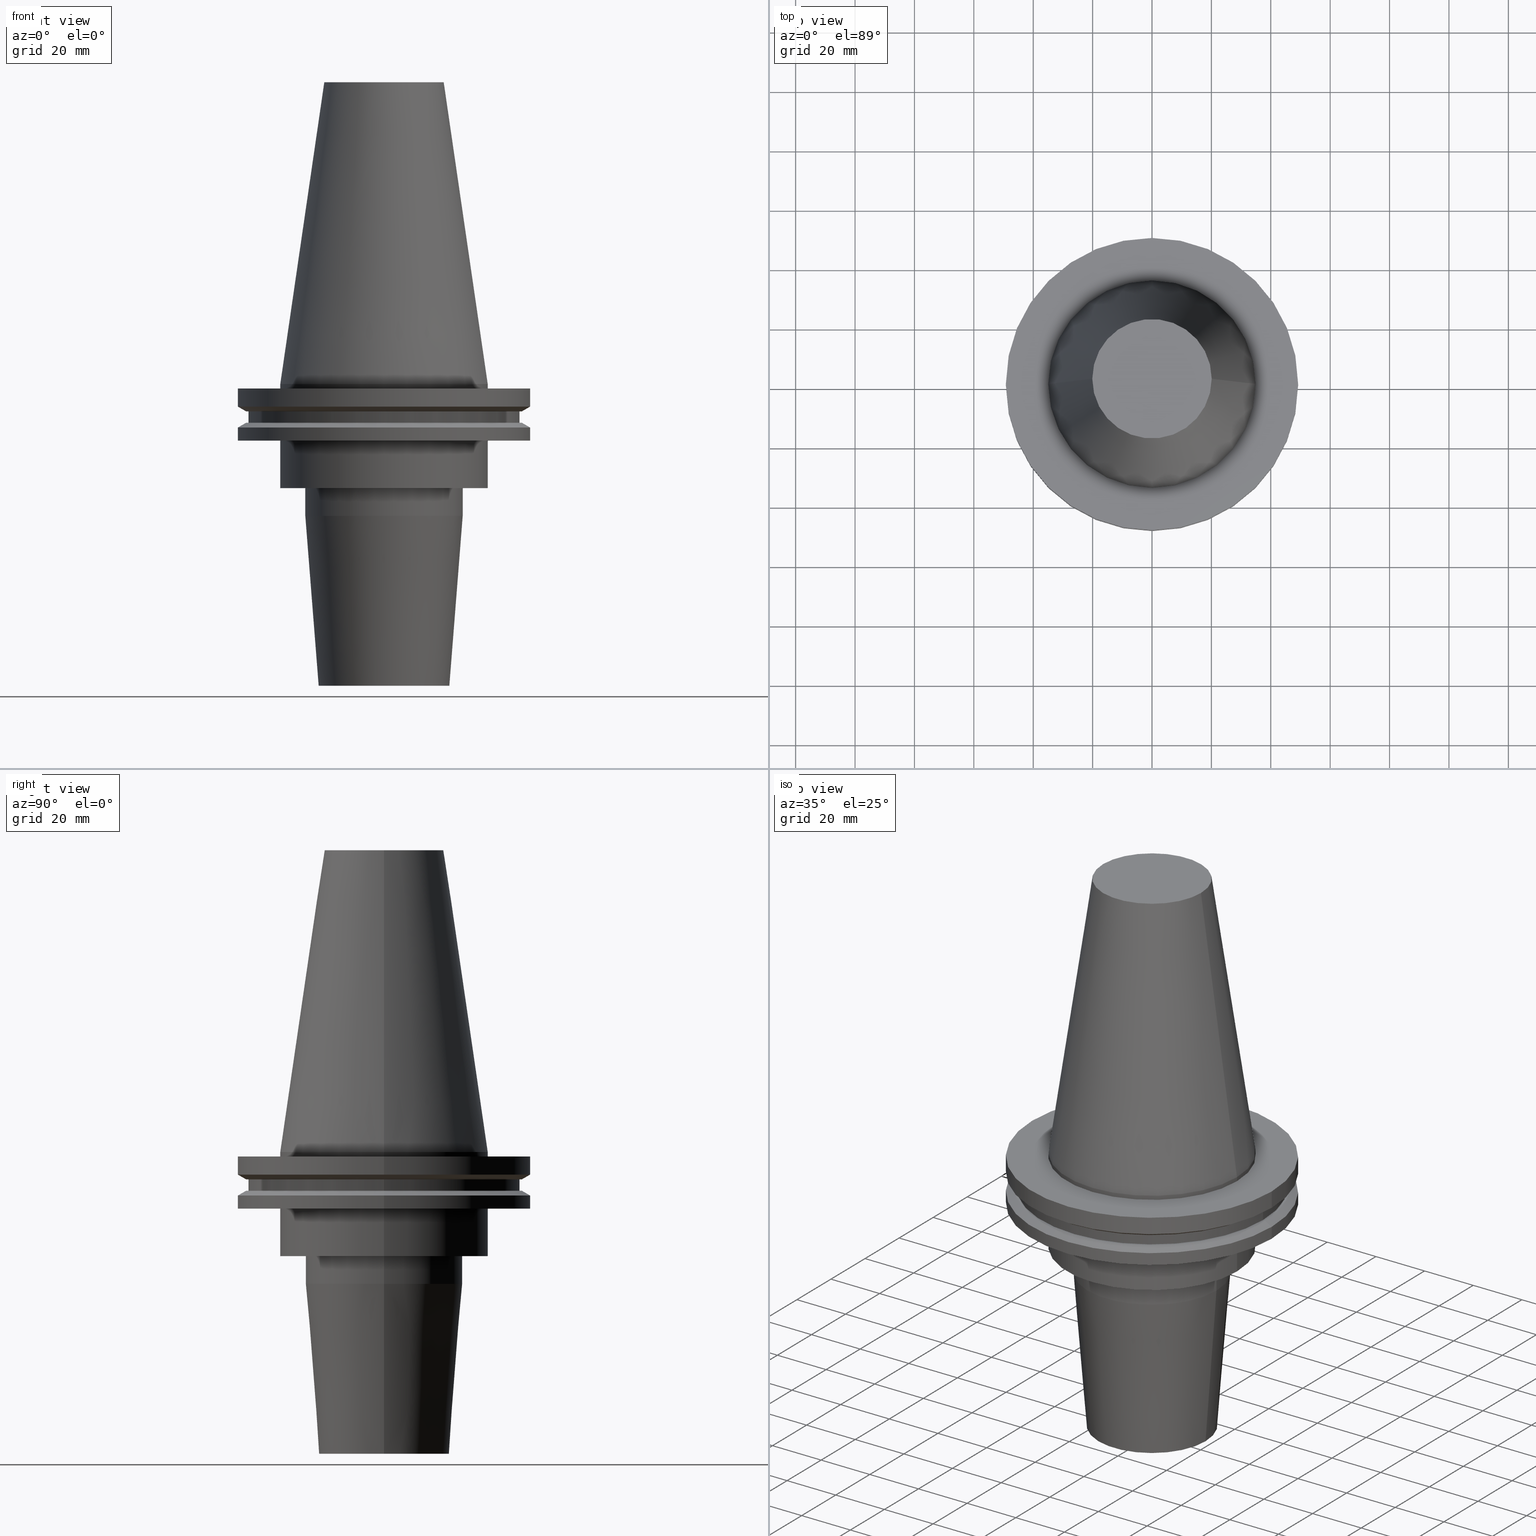
[diagram: canonical four-view strip — front | top / right | iso, engineering-drawing reading convention]
A machine part, canonical four-view strip (front | top / right | iso — engineering-drawing reading convention). The complete STEP part file that produces these views, byte-faithful:
ISO-10303-21;
HEADER;
FILE_DESCRIPTION (( 'STEP AP203' ),
    '1' );
FILE_NAME ('BCV50-SF1_250-4.stp',
    '2022-03-03T17:22:52',
    ( '' ),
    ( '' ),
    'SwSTEP 2.0',
    'SolidWorks 2021',
    '' );
FILE_SCHEMA (( 'CONFIG_CONTROL_DESIGN' ));
ENDSEC;

DATA;
#1 = DIRECTION ( 'NONE',  ( 1.000000000000000000, 0.000000000000000000, 0.000000000000000000 ) ) ;
#2 = CIRCLE ( 'NONE', #326, 34.92499999999999005 ) ;
#3 = AXIS2_PLACEMENT_3D ( 'NONE', #226, #434, #762 ) ;
#4 = DIRECTION ( 'NONE',  ( 1.000000000000000000, 0.000000000000000000, 0.000000000000000000 ) ) ;
#5 = CONICAL_SURFACE ( 'NONE', #608, 49.21499999999998920, 1.047197551196554333 ) ;
#6 = EDGE_CURVE ( 'NONE', #400, #793, #80, .T. ) ;
#7 = PLANE ( 'NONE',  #567 ) ;
#8 = LINE ( 'NONE', #275, #787 ) ;
#9 = DIRECTION ( 'NONE',  ( 0.000000000000000000, 0.000000000000000000, -1.000000000000000000 ) ) ;
#10 = CARTESIAN_POINT ( 'NONE',  ( 0.000000000000000000, 0.000000000000000000, -35.04999999999999716 ) ) ;
#11 = DIRECTION ( 'NONE',  ( 1.000000000000000000, 0.000000000000000000, 0.000000000000000000 ) ) ;
#12 = EDGE_CURVE ( 'NONE', #393, #560, #457, .T. ) ;
#13 = CARTESIAN_POINT ( 'NONE',  ( 0.000000000000000000, 0.000000000000000000, -19.04999999999999716 ) ) ;
#14 = AXIS2_PLACEMENT_3D ( 'NONE', #714, #696, #555 ) ;
#15 = EDGE_CURVE ( 'NONE', #599, #219, #85, .T. ) ;
#16 = ORIENTED_EDGE ( 'NONE', *, *, #137, .T. ) ;
#17 = CONICAL_SURFACE ( 'NONE', #470, 22.00000000000000000, 0.07853981633973751431 ) ;
#18 = CARTESIAN_POINT ( 'NONE',  ( 0.000000000000000000, 0.000000000000000000, -9.204999999999991189 ) ) ;
#19 = CARTESIAN_POINT ( 'NONE',  ( 49.21499999999998920, 0.000000000000000000, -14.65761014474876944 ) ) ;
#20 = EDGE_CURVE ( 'NONE', #772, #54, #553, .T. ) ;
#21 = DIRECTION ( 'NONE',  ( 1.000000000000000000, 0.000000000000000000, 0.000000000000000000 ) ) ;
#22 = ORIENTED_EDGE ( 'NONE', *, *, #453, .T. ) ;
#23 = DIRECTION ( 'NONE',  ( 1.000000000000000000, 0.000000000000000000, 0.000000000000000000 ) ) ;
#24 = CARTESIAN_POINT ( 'NONE',  ( 49.21499999999999631, 0.000000000000000000, -1.499999999999987566 ) ) ;
#25 = CC_DESIGN_PERSON_AND_ORGANIZATION_ASSIGNMENT ( #593, #246, ( #528 ) ) ;
#26 = ORIENTED_EDGE ( 'NONE', *, *, #15, .F. ) ;
#27 = DIRECTION ( 'NONE',  ( -0.000000000000000000, -0.000000000000000000, 1.000000000000000000 ) ) ;
#28 = DIRECTION ( 'NONE',  ( -0.000000000000000000, -0.000000000000000000, 1.000000000000000000 ) ) ;
#29 = AXIS2_PLACEMENT_3D ( 'NONE', #13, #807, #692 ) ;
#30 = COORDINATED_UNIVERSAL_TIME_OFFSET ( 6, 0, .BEHIND. ) ;
#31 = AXIS2_PLACEMENT_3D ( 'NONE', #416, #603, #284 ) ;
#32 = DIRECTION ( 'NONE',  ( 1.000000000000000000, 0.000000000000000000, 0.000000000000000000 ) ) ;
#33 = ORIENTED_EDGE ( 'NONE', *, *, #43, .T. ) ;
#34 = LINE ( 'NONE', #643, #540 ) ;
#35 = DIRECTION ( 'NONE',  ( -1.000000000000000000, 0.000000000000000000, -0.000000000000000000 ) ) ;
#36 = EDGE_LOOP ( 'NONE', ( #721, #320, #331, #464 ) ) ;
#37 = CARTESIAN_POINT ( 'NONE',  ( 0.000000000000000000, 0.000000000000000000, 0.000000000000000000 ) ) ;
#38 = DIRECTION ( 'NONE',  ( 1.000000000000000000, 0.000000000000000000, 0.000000000000000000 ) ) ;
#39 = CARTESIAN_POINT ( 'NONE',  ( 49.21499999999999631, 0.000000000000000000, 101.5999999999999943 ) ) ;
#40 = ORIENTED_EDGE ( 'NONE', *, *, #704, .F. ) ;
#41 = DIRECTION ( 'NONE',  ( -0.000000000000000000, -0.000000000000000000, 1.000000000000000000 ) ) ;
#42 = CARTESIAN_POINT ( 'NONE',  ( 0.000000000000000000, 0.000000000000000000, 101.5999999999999943 ) ) ;
#43 = EDGE_CURVE ( 'NONE', #364, #786, #508, .T. ) ;
#44 = ADVANCED_FACE ( 'NONE', ( #411 ), #339, .T. ) ;
#45 = DIRECTION ( 'NONE',  ( -1.000000000000000000, 0.000000000000000000, -0.000000000000000000 ) ) ;
#46 = VERTEX_POINT ( 'NONE', #738 ) ;
#47 = AXIS2_PLACEMENT_3D ( 'NONE', #37, #445, #818 ) ;
#48 = VECTOR ( 'NONE', #110, 1000.000000000000000 ) ;
#49 = EDGE_LOOP ( 'NONE', ( #342, #236 ) ) ;
#50 = DIRECTION ( 'NONE',  ( -0.1443082272672999988, 0.000000000000000000, -0.9895327864921755756 ) ) ;
#51 = DIRECTION ( 'NONE',  ( -0.000000000000000000, -0.000000000000000000, 1.000000000000000000 ) ) ;
#52 = ADVANCED_FACE ( 'NONE', ( #209 ), #327, .T. ) ;
#53 = ORIENTED_EDGE ( 'NONE', *, *, #795, .T. ) ;
#54 = VERTEX_POINT ( 'NONE', #751 ) ;
#55 = COORDINATED_UNIVERSAL_TIME_OFFSET ( 6, 0, .BEHIND. ) ;
#56 = DIRECTION ( 'NONE',  ( -0.000000000000000000, -0.000000000000000000, 1.000000000000000000 ) ) ;
#57 = EDGE_CURVE ( 'NONE', #560, #393, #311, .T. ) ;
#58 = EDGE_LOOP ( 'NONE', ( #324, #293, #265, #502 ) ) ;
#59 = APPLICATION_CONTEXT ( 'configuration controlled 3d designs of mechanical parts and assemblies' ) ;
#60 = ORIENTED_EDGE ( 'NONE', *, *, #301, .T. ) ;
#61 = CARTESIAN_POINT ( 'NONE',  ( 0.000000000000000000, 0.000000000000000000, 101.5999999999999943 ) ) ;
#62 = CIRCLE ( 'NONE', #493, 49.21499999999998920 ) ;
#63 = AXIS2_PLACEMENT_3D ( 'NONE', #656, #429, #38 ) ;
#64 = VERTEX_POINT ( 'NONE', #806 ) ;
#65 = CIRCLE ( 'NONE', #746, 34.92499999999999005 ) ;
#66 = ORIENTED_EDGE ( 'NONE', *, *, #754, .F. ) ;
#67 = ORIENTED_EDGE ( 'NONE', *, *, #577, .F. ) ;
#68 = ORIENTED_EDGE ( 'NONE', *, *, #43, .F. ) ;
#69 = CARTESIAN_POINT ( 'NONE',  ( 0.000000000000000000, 0.000000000000000000, 101.5999999999999943 ) ) ;
#70 = DIRECTION ( 'NONE',  ( -0.000000000000000000, -0.000000000000000000, 1.000000000000000000 ) ) ;
#71 = EDGE_CURVE ( 'NONE', #579, #64, #74, .T. ) ;
#72 = CARTESIAN_POINT ( 'NONE',  ( 15.87499999999998224, 0.000000000000000000, -50.59999999999999432 ) ) ;
#73 = VECTOR ( 'NONE', #517, 1000.000000000000000 ) ;
#74 = CIRCLE ( 'NONE', #821, 46.43919780457007818 ) ;
#75 = DIRECTION ( 'NONE',  ( 1.000000000000000000, 0.000000000000000000, 0.000000000000000000 ) ) ;
#76 = EDGE_LOOP ( 'NONE', ( #67, #264, #519, #842 ) ) ;
#77 = DIRECTION ( 'NONE',  ( 1.000000000000000000, 0.000000000000000000, 0.000000000000000000 ) ) ;
#78 = FACE_OUTER_BOUND ( 'NONE', #514, .T. ) ;
#79 = ADVANCED_FACE ( 'NONE', ( #277 ), #675, .T. ) ;
#80 = LINE ( 'NONE', #798, #735 ) ;
#81 = CARTESIAN_POINT ( 'NONE',  ( 0.000000000000000000, 0.000000000000000000, -9.204999999999991189 ) ) ;
#82 = CARTESIAN_POINT ( 'NONE',  ( 0.000000000000000000, 0.000000000000000000, -13.05499999999999794 ) ) ;
#83 = DIRECTION ( 'NONE',  ( 1.000000000000000000, 0.000000000000000000, 0.000000000000000000 ) ) ;
#84 = CARTESIAN_POINT ( 'NONE',  ( -46.43919780457007818, 5.857130358318727293E-15, -9.204999999999991189 ) ) ;
#85 = CIRCLE ( 'NONE', #31, 49.21499999999999631 ) ;
#86 = VECTOR ( 'NONE', #183, 999.9999999999998863 ) ;
#87 = AXIS2_PLACEMENT_3D ( 'NONE', #726, #462, #513 ) ;
#88 = ORIENTED_EDGE ( 'NONE', *, *, #176, .T. ) ;
#89 = DIRECTION ( 'NONE',  ( -0.000000000000000000, -0.000000000000000000, 1.000000000000000000 ) ) ;
#90 = CARTESIAN_POINT ( 'NONE',  ( 20.10819343178871321, 3.369811209154858606E-15, 101.5999999999999801 ) ) ;
#91 = EDGE_CURVE ( 'NONE', #98, #449, #479, .T. ) ;
#92 = MECHANICAL_CONTEXT ( 'NONE', #651, 'mechanical' ) ;
#93 = CARTESIAN_POINT ( 'NONE',  ( 0.000000000000000000, 0.000000000000000000, -35.04999999999999716 ) ) ;
#94 = ORIENTED_EDGE ( 'NONE', *, *, #146, .F. ) ;
#95 = CARTESIAN_POINT ( 'NONE',  ( -34.92499999999999716, 4.277078946022130887E-15, -35.04999999999999716 ) ) ;
#96 = CARTESIAN_POINT ( 'NONE',  ( 0.000000000000000000, 0.000000000000000000, 101.5999999999999943 ) ) ;
#97 = CARTESIAN_POINT ( 'NONE',  ( 0.000000000000000000, 45.64500000000000313, -13.05499999999999794 ) ) ;
#98 = VERTEX_POINT ( 'NONE', #72 ) ;
#99 = FACE_OUTER_BOUND ( 'NONE', #36, .T. ) ;
#100 = EDGE_LOOP ( 'NONE', ( #353, #826, #60, #723 ) ) ;
#101 = DIRECTION ( 'NONE',  ( 1.000000000000000000, 0.000000000000000000, 0.000000000000000000 ) ) ;
#102 = VECTOR ( 'NONE', #50, 999.9999999999998863 ) ;
#103 = CALENDAR_DATE ( 2022, 3, 3 ) ;
#104 = LOCAL_TIME ( 11, 22, 52.00000000000000000, #30 ) ;
#105 = CARTESIAN_POINT ( 'NONE',  ( 0.000000000000000000, 0.000000000000000000, -101.5999999999999943 ) ) ;
#106 = EDGE_LOOP ( 'NONE', ( #126, #524, #631, #68 ) ) ;
#107 = DIRECTION ( 'NONE',  ( -0.000000000000000000, -0.000000000000000000, 1.000000000000000000 ) ) ;
#108 = ORIENTED_EDGE ( 'NONE', *, *, #57, .F. ) ;
#109 = FACE_OUTER_BOUND ( 'NONE', #299, .T. ) ;
#110 = DIRECTION ( 'NONE',  ( -0.000000000000000000, -0.000000000000000000, 1.000000000000000000 ) ) ;
#111 = ORIENTED_EDGE ( 'NONE', *, *, #351, .T. ) ;
#112 = CARTESIAN_POINT ( 'NONE',  ( 34.92499999999999005, 0.000000000000000000, -1.499999999999987566 ) ) ;
#113 = ADVANCED_FACE ( 'NONE', ( #402, #476 ), #7, .F. ) ;
#114 = DIRECTION ( 'NONE',  ( -0.000000000000000000, -0.000000000000000000, 1.000000000000000000 ) ) ;
#115 = ADVANCED_FACE ( 'NONE', ( #548 ), #614, .F. ) ;
#116 = CARTESIAN_POINT ( 'NONE',  ( -45.64500000000000313, 5.589900314708094957E-15, -9.204999999999991189 ) ) ;
#117 = ORIENTED_EDGE ( 'NONE', *, *, #146, .T. ) ;
#118 = CARTESIAN_POINT ( 'NONE',  ( 34.92499999999999716, 0.000000000000000000, 101.5999999999999943 ) ) ;
#119 = ORIENTED_EDGE ( 'NONE', *, *, #176, .F. ) ;
#120 = FACE_OUTER_BOUND ( 'NONE', #49, .T. ) ;
#121 = CARTESIAN_POINT ( 'NONE',  ( 34.92499999999999005, 0.000000000000000000, 101.5999999999999943 ) ) ;
#122 = EDGE_LOOP ( 'NONE', ( #388, #743 ) ) ;
#123 = VECTOR ( 'NONE', #336, 1000.000000000000000 ) ;
#124 = VECTOR ( 'NONE', #294, 1000.000000000000000 ) ;
#125 = CIRCLE ( 'NONE', #247, 34.92499999999999716 ) ;
#126 = ORIENTED_EDGE ( 'NONE', *, *, #756, .F. ) ;
#127 = ADVANCED_FACE ( 'NONE', ( #345 ), #441, .T. ) ;
#128 = DIRECTION ( 'NONE',  ( -0.000000000000000000, -0.000000000000000000, 1.000000000000000000 ) ) ;
#129 = ORIENTED_EDGE ( 'NONE', *, *, #382, .T. ) ;
#130 = ORIENTED_EDGE ( 'NONE', *, *, #430, .F. ) ;
#131 = ORIENTED_EDGE ( 'NONE', *, *, #20, .F. ) ;
#132 = VERTEX_POINT ( 'NONE', #748 ) ;
#133 = AXIS2_PLACEMENT_3D ( 'NONE', #471, #484, #413 ) ;
#134 = ORIENTED_EDGE ( 'NONE', *, *, #741, .T. ) ;
#135 = AXIS2_PLACEMENT_3D ( 'NONE', #139, #272, #674 ) ;
#136 = DIRECTION ( 'NONE',  ( 1.000000000000000000, 0.000000000000000000, 0.000000000000000000 ) ) ;
#137 = EDGE_CURVE ( 'NONE', #449, #98, #618, .T. ) ;
#138 = EDGE_CURVE ( 'NONE', #845, #734, #527, .T. ) ;
#139 = CARTESIAN_POINT ( 'NONE',  ( 0.000000000000000000, 0.000000000000000000, -44.42207868720844743 ) ) ;
#140 = CARTESIAN_POINT ( 'NONE',  ( 0.000000000000000000, 0.000000000000000000, 101.5999999999999943 ) ) ;
#141 = DIRECTION ( 'NONE',  ( -0.000000000000000000, -0.000000000000000000, 1.000000000000000000 ) ) ;
#142 = DIRECTION ( 'NONE',  ( -0.000000000000000000, -0.000000000000000000, 1.000000000000000000 ) ) ;
#143 = CIRCLE ( 'NONE', #199, 20.10819343178871321 ) ;
#144 = AXIS2_PLACEMENT_3D ( 'NONE', #808, #215, #769 ) ;
#145 = CARTESIAN_POINT ( 'NONE',  ( 0.000000000000000000, 0.000000000000000000, 0.000000000000000000 ) ) ;
#146 = EDGE_CURVE ( 'NONE', #465, #168, #655, .T. ) ;
#147 = CARTESIAN_POINT ( 'NONE',  ( 0.000000000000000000, 0.000000000000000000, -50.59999999999999432 ) ) ;
#148 = CARTESIAN_POINT ( 'NONE',  ( 0.000000000000000000, 0.000000000000000000, -44.42207868720844743 ) ) ;
#149 = CARTESIAN_POINT ( 'NONE',  ( -34.92499999999999005, 4.277078946022130098E-15, 101.5999999999999943 ) ) ;
#150 = DIRECTION ( 'NONE',  ( -0.000000000000000000, -0.000000000000000000, 1.000000000000000000 ) ) ;
#151 = APPROVAL_STATUS ( 'not_yet_approved' ) ;
#152 = DIRECTION ( 'NONE',  ( -0.000000000000000000, -0.000000000000000000, 1.000000000000000000 ) ) ;
#153 = ORIENTED_EDGE ( 'NONE', *, *, #330, .F. ) ;
#154 = FACE_BOUND ( 'NONE', #205, .T. ) ;
#155 = DIRECTION ( 'NONE',  ( -0.000000000000000000, -0.000000000000000000, 1.000000000000000000 ) ) ;
#156 = AXIS2_PLACEMENT_3D ( 'NONE', #487, #503, #438 ) ;
#157 = CIRCLE ( 'NONE', #340, 15.87499999999999289 ) ;
#158 = DIRECTION ( 'NONE',  ( 0.000000000000000000, 0.000000000000000000, -1.000000000000000000 ) ) ;
#159 = ORIENTED_EDGE ( 'NONE', *, *, #417, .T. ) ;
#160 = CYLINDRICAL_SURFACE ( 'NONE', #551, 34.92499999999999005 ) ;
#161 = CC_DESIGN_PERSON_AND_ORGANIZATION_ASSIGNMENT ( #588, #378, ( #368 ) ) ;
#162 =( NAMED_UNIT ( * ) PLANE_ANGLE_UNIT ( ) SI_UNIT ( $, .RADIAN. ) );
#163 = DIRECTION ( 'NONE',  ( 0.000000000000000000, -0.000000000000000000, 1.000000000000000000 ) ) ;
#164 = ORIENTED_EDGE ( 'NONE', *, *, #71, .T. ) ;
#165 = DIRECTION ( 'NONE',  ( 1.000000000000000000, 0.000000000000000000, 0.000000000000000000 ) ) ;
#166 = LINE ( 'NONE', #295, #491 ) ;
#167 = CARTESIAN_POINT ( 'NONE',  ( 0.000000000000000000, 0.000000000000000000, -101.5999999999999943 ) ) ;
#168 = VERTEX_POINT ( 'NONE', #95 ) ;
#169 = DIRECTION ( 'NONE',  ( -0.000000000000000000, -0.000000000000000000, 1.000000000000000000 ) ) ;
#170 = CARTESIAN_POINT ( 'NONE',  ( 49.21499999999998920, 0.000000000000000000, 101.5999999999999943 ) ) ;
#171 = CLOSED_SHELL ( 'NONE', ( #483, #349, #558, #214, #839, #239, #515, #681, #394, #810, #127, #187, #482, #678, #44, #317, #732, #273, #361, #289, #113, #52, #198, #782, #79, #333, #533, #174, #115, #207 ) ) ;
#172 = VECTOR ( 'NONE', #633, 1000.000000000000114 ) ;
#173 = AXIS2_PLACEMENT_3D ( 'NONE', #82, #152, #21 ) ;
#174 = ADVANCED_FACE ( 'NONE', ( #291, #154 ), #243, .F. ) ;
#175 = VERTEX_POINT ( 'NONE', #112 ) ;
#176 = EDGE_CURVE ( 'NONE', #727, #760, #262, .T. ) ;
#177 = CARTESIAN_POINT ( 'NONE',  ( 0.000000000000000000, 0.000000000000000000, -35.04999999999999716 ) ) ;
#178 = CARTESIAN_POINT ( 'NONE',  ( -34.92499999999999005, 0.000000000000000000, 0.000000000000000000 ) ) ;
#179 = CARTESIAN_POINT ( 'NONE',  ( -15.87499999999998579, 1.944126793646421660E-15, 0.000000000000000000 ) ) ;
#180 = ORIENTED_EDGE ( 'NONE', *, *, #549, .T. ) ;
#181 = APPROVAL ( #652, 'UNSPECIFIED' ) ;
#182 = ORIENTED_EDGE ( 'NONE', *, *, #200, .T. ) ;
#183 = DIRECTION ( 'NONE',  ( 0.1443082272672999988, 1.767266086135277066E-17, -0.9895327864921755756 ) ) ;
#184 = CARTESIAN_POINT ( 'NONE',  ( 0.000000000000000000, 0.000000000000000000, 101.5999999999999943 ) ) ;
#185 = DIRECTION ( 'NONE',  ( -0.000000000000000000, -0.000000000000000000, 1.000000000000000000 ) ) ;
#186 = ORIENTED_EDGE ( 'NONE', *, *, #613, .F. ) ;
#187 = ADVANCED_FACE ( 'NONE', ( #708 ), #397, .T. ) ;
#188 = FACE_OUTER_BOUND ( 'NONE', #362, .T. ) ;
#189 = ORIENTED_EDGE ( 'NONE', *, *, #408, .T. ) ;
#190 = LOCAL_TIME ( 11, 22, 52.00000000000000000, #55 ) ;
#191 = ORIENTED_EDGE ( 'NONE', *, *, #203, .T. ) ;
#192 = LINE ( 'NONE', #121, #386 ) ;
#193 = ORIENTED_EDGE ( 'NONE', *, *, #453, .F. ) ;
#194 = CYLINDRICAL_SURFACE ( 'NONE', #424, 45.64500000000000313 ) ;
#195 = ORIENTED_EDGE ( 'NONE', *, *, #356, .F. ) ;
#196 = ORIENTED_EDGE ( 'NONE', *, *, #460, .F. ) ;
#197 = ORIENTED_EDGE ( 'NONE', *, *, #644, .F. ) ;
#198 = ADVANCED_FACE ( 'NONE', ( #765 ), #498, .T. ) ;
#199 = AXIS2_PLACEMENT_3D ( 'NONE', #344, #412, #676 ) ;
#200 = EDGE_CURVE ( 'NONE', #530, #54, #836, .T. ) ;
#201 = DIRECTION ( 'NONE',  ( -0.000000000000000000, -0.000000000000000000, 1.000000000000000000 ) ) ;
#202 = DIRECTION ( 'NONE',  ( -0.000000000000000000, -0.000000000000000000, 1.000000000000000000 ) ) ;
#203 = EDGE_CURVE ( 'NONE', #175, #772, #65, .T. ) ;
#204 = CARTESIAN_POINT ( 'NONE',  ( 0.000000000000000000, 34.92499999999999716, -35.04999999999999716 ) ) ;
#205 = EDGE_LOOP ( 'NONE', ( #590, #506 ) ) ;
#206 = CARTESIAN_POINT ( 'NONE',  ( 0.000000000000000000, 0.000000000000000000, 0.000000000000000000 ) ) ;
#207 = ADVANCED_FACE ( 'NONE', ( #428 ), #358, .F. ) ;
#208 = DIRECTION ( 'NONE',  ( -0.000000000000000000, -0.000000000000000000, 1.000000000000000000 ) ) ;
#209 = FACE_OUTER_BOUND ( 'NONE', #106, .T. ) ;
#210 = AXIS2_PLACEMENT_3D ( 'NONE', #521, #840, #578 ) ;
#211 = VECTOR ( 'NONE', #201, 1000.000000000000000 ) ;
#212 = CC_DESIGN_APPROVAL ( #494, ( #528 ) ) ;
#213 = DIRECTION ( 'NONE',  ( -1.000000000000000000, 0.000000000000000000, 0.000000000000000000 ) ) ;
#214 = ADVANCED_FACE ( 'NONE', ( #827 ), #160, .T. ) ;
#215 = DIRECTION ( 'NONE',  ( -0.000000000000000000, -0.000000000000000000, 1.000000000000000000 ) ) ;
#216 = DIRECTION ( 'NONE',  ( -0.000000000000000000, -0.000000000000000000, 1.000000000000000000 ) ) ;
#217 = PERSON_AND_ORGANIZATION ( #794, #639 ) ;
#218 = DIRECTION ( 'NONE',  ( 1.000000000000000000, 0.000000000000000000, 0.000000000000000000 ) ) ;
#219 = VERTEX_POINT ( 'NONE', #306 ) ;
#220 = DIRECTION ( 'NONE',  ( -0.000000000000000000, -0.000000000000000000, 1.000000000000000000 ) ) ;
#221 = LINE ( 'NONE', #170, #310 ) ;
#222 = DATE_TIME_ROLE ( 'creation_date' ) ;
#223 = CYLINDRICAL_SURFACE ( 'NONE', #271, 26.50000000000000000 ) ;
#224 = ORIENTED_EDGE ( 'NONE', *, *, #20, .T. ) ;
#225 = EDGE_CURVE ( 'NONE', #760, #727, #62, .T. ) ;
#226 = CARTESIAN_POINT ( 'NONE',  ( 0.000000000000000000, 0.000000000000000000, 101.5999999999999943 ) ) ;
#227 = CARTESIAN_POINT ( 'NONE',  ( 49.21499999999998920, 6.027099222003697037E-15, -14.65761014474876944 ) ) ;
#228 = CIRCLE ( 'NONE', #722, 22.00000000000000000 ) ;
#229 = AXIS2_PLACEMENT_3D ( 'NONE', #300, #27, #165 ) ;
#230 = APPLICATION_PROTOCOL_DEFINITION ( 'international standard', 'config_control_design', 1994, #59 ) ;
#231 = CARTESIAN_POINT ( 'NONE',  ( 0.000000000000000000, 49.21499999999998920, -19.04999999999999716 ) ) ;
#232 = ORIENTED_EDGE ( 'NONE', *, *, #401, .F. ) ;
#233 = DIRECTION ( 'NONE',  ( 0.000000000000000000, -0.000000000000000000, 1.000000000000000000 ) ) ;
#234 = CARTESIAN_POINT ( 'NONE',  ( 34.92499999999999005, 4.277078946022130098E-15, 0.000000000000000000 ) ) ;
#235 = DIRECTION ( 'NONE',  ( 1.000000000000000000, 0.000000000000000000, 0.000000000000000000 ) ) ;
#236 = ORIENTED_EDGE ( 'NONE', *, *, #671, .T. ) ;
#237 = CARTESIAN_POINT ( 'NONE',  ( 0.000000000000000000, 0.000000000000000000, -101.5999999999999943 ) ) ;
#238 = CARTESIAN_POINT ( 'NONE',  ( -49.21499999999998920, 6.027099222003697037E-15, -14.65761014474876944 ) ) ;
#239 = ADVANCED_FACE ( 'NONE', ( #99 ), #773, .T. ) ;
#240 =( NAMED_UNIT ( * ) SI_UNIT ( $, .STERADIAN. ) SOLID_ANGLE_UNIT ( ) );
#241 = CARTESIAN_POINT ( 'NONE',  ( 0.000000000000000000, 0.000000000000000000, 0.000000000000000000 ) ) ;
#242 = ORIENTED_EDGE ( 'NONE', *, *, #851, .T. ) ;
#243 = PLANE ( 'NONE',  #665 ) ;
#244 = AXIS2_PLACEMENT_3D ( 'NONE', #270, #740, #684 ) ;
#245 = CIRCLE ( 'NONE', #398, 46.43919780457007818 ) ;
#246 = PERSON_AND_ORGANIZATION_ROLE ( 'creator' ) ;
#247 = AXIS2_PLACEMENT_3D ( 'NONE', #93, #763, #4 ) ;
#248 = DIRECTION ( 'NONE',  ( -0.000000000000000000, -0.000000000000000000, 1.000000000000000000 ) ) ;
#249 = EDGE_CURVE ( 'NONE', #586, #268, #468, .T. ) ;
#250 = EDGE_LOOP ( 'NONE', ( #153, #854, #16, #196 ) ) ;
#251 = LINE ( 'NONE', #825, #73 ) ;
#252 = CALENDAR_DATE ( 2022, 3, 3 ) ;
#253 = CYLINDRICAL_SURFACE ( 'NONE', #210, 15.87499999999998579 ) ;
#254 = EDGE_CURVE ( 'NONE', #772, #175, #539, .T. ) ;
#255 = EDGE_LOOP ( 'NONE', ( #329, #375 ) ) ;
#256 = DATE_AND_TIME ( #252, #423 ) ;
#257 = CARTESIAN_POINT ( 'NONE',  ( 0.000000000000000000, 0.000000000000000000, -19.04999999999999716 ) ) ;
#258 = ORIENTED_EDGE ( 'NONE', *, *, #541, .F. ) ;
#259 = LINE ( 'NONE', #448, #584 ) ;
#260 = ORIENTED_EDGE ( 'NONE', *, *, #731, .F. ) ;
#261 = CIRCLE ( 'NONE', #849, 46.43919780457007818 ) ;
#262 = CIRCLE ( 'NONE', #280, 49.21499999999998920 ) ;
#263 = CC_DESIGN_APPROVAL ( #450, ( #403 ) ) ;
#264 = ORIENTED_EDGE ( 'NONE', *, *, #138, .T. ) ;
#265 = ORIENTED_EDGE ( 'NONE', *, *, #644, .T. ) ;
#266 = ORIENTED_EDGE ( 'NONE', *, *, #466, .T. ) ;
#267 = EDGE_CURVE ( 'NONE', #315, #786, #690, .T. ) ;
#268 = VERTEX_POINT ( 'NONE', #566 ) ;
#269 = CIRCLE ( 'NONE', #526, 49.21499999999999631 ) ;
#270 = CARTESIAN_POINT ( 'NONE',  ( 0.000000000000000000, 0.000000000000000000, -50.59999999999999432 ) ) ;
#271 = AXIS2_PLACEMENT_3D ( 'NONE', #241, #771, #218 ) ;
#272 = DIRECTION ( 'NONE',  ( -0.000000000000000000, -0.000000000000000000, 1.000000000000000000 ) ) ;
#273 = ADVANCED_FACE ( 'NONE', ( #823 ), #5, .T. ) ;
#274 = DIRECTION ( 'NONE',  ( -0.000000000000000000, -0.000000000000000000, 1.000000000000000000 ) ) ;
#275 = CARTESIAN_POINT ( 'NONE',  ( -45.64500000000000313, 5.589900314708094957E-15, 101.5999999999999943 ) ) ;
#276 = ORIENTED_EDGE ( 'NONE', *, *, #6, .T. ) ;
#277 = FACE_OUTER_BOUND ( 'NONE', #437, .T. ) ;
#278 = FACE_OUTER_BOUND ( 'NONE', #435, .T. ) ;
#279 = DIRECTION ( 'NONE',  ( -0.07845909572783764385, 9.608468044709212160E-18, 0.9969173337331286300 ) ) ;
#280 = AXIS2_PLACEMENT_3D ( 'NONE', #507, #169, #813 ) ;
#281 = CIRCLE ( 'NONE', #687, 26.50000000000000000 ) ;
#282 = DIRECTION ( 'NONE',  ( 1.000000000000000000, 0.000000000000000000, 0.000000000000000000 ) ) ;
#283 = PLANE ( 'NONE',  #724 ) ;
#284 = DIRECTION ( 'NONE',  ( 1.000000000000000000, 0.000000000000000000, 0.000000000000000000 ) ) ;
#285 = CARTESIAN_POINT ( 'NONE',  ( 45.64500000000000313, 0.000000000000000000, -9.204999999999991189 ) ) ;
#286 = EDGE_CURVE ( 'NONE', #734, #560, #34, .T. ) ;
#287 = APPROVAL_ROLE ( '' ) ;
#288 = CARTESIAN_POINT ( 'NONE',  ( -34.92499999999999716, 4.277078946022130887E-15, -19.04999999999999716 ) ) ;
#289 = ADVANCED_FACE ( 'NONE', ( #669 ), #194, .T. ) ;
#290 = VERTEX_POINT ( 'NONE', #328 ) ;
#291 = FACE_OUTER_BOUND ( 'NONE', #835, .T. ) ;
#292 = DIRECTION ( 'NONE',  ( -0.000000000000000000, -0.000000000000000000, 1.000000000000000000 ) ) ;
#293 = ORIENTED_EDGE ( 'NONE', *, *, #71, .F. ) ;
#294 = DIRECTION ( 'NONE',  ( 0.8660254037844273833, 0.000000000000000000, 0.5000000000000195399 ) ) ;
#295 = CARTESIAN_POINT ( 'NONE',  ( -49.21499999999999631, 6.027099222003697826E-15, 101.5999999999999943 ) ) ;
#296 = AXIS2_PLACEMENT_3D ( 'NONE', #488, #208, #615 ) ;
#297 = AXIS2_PLACEMENT_3D ( 'NONE', #147, #616, #11 ) ;
#298 = LOCAL_TIME ( 11, 22, 52.00000000000000000, #634 ) ;
#299 = EDGE_LOOP ( 'NONE', ( #117, #729, #232, #661 ) ) ;
#300 = CARTESIAN_POINT ( 'NONE',  ( 0.000000000000000000, 0.000000000000000000, 0.000000000000000000 ) ) ;
#301 = EDGE_CURVE ( 'NONE', #465, #319, #516, .T. ) ;
#302 = LINE ( 'NONE', #227, #172 ) ;
#303 = COORDINATED_UNIVERSAL_TIME_OFFSET ( 6, 0, .BEHIND. ) ;
#304 = DIRECTION ( 'NONE',  ( -0.000000000000000000, -0.000000000000000000, 1.000000000000000000 ) ) ;
#305 = ORIENTED_EDGE ( 'NONE', *, *, #824, .F. ) ;
#306 = CARTESIAN_POINT ( 'NONE',  ( -49.21499999999999631, 6.027099222003697826E-15, -1.499999999999987566 ) ) ;
#307 = DIRECTION ( 'NONE',  ( 0.000000000000000000, 0.000000000000000000, -1.000000000000000000 ) ) ;
#308 = ORIENTED_EDGE ( 'NONE', *, *, #671, .F. ) ;
#309 = DIRECTION ( 'NONE',  ( -0.000000000000000000, -0.000000000000000000, 1.000000000000000000 ) ) ;
#310 = VECTOR ( 'NONE', #576, 1000.000000000000000 ) ;
#311 = CIRCLE ( 'NONE', #638, 45.64500000000000313 ) ;
#312 = VECTOR ( 'NONE', #485, 1000.000000000000114 ) ;
#313 = VECTOR ( 'NONE', #70, 1000.000000000000000 ) ;
#314 = DIRECTION ( 'NONE',  ( -0.000000000000000000, -0.000000000000000000, 1.000000000000000000 ) ) ;
#315 = VERTEX_POINT ( 'NONE', #750 ) ;
#316 = LINE ( 'NONE', #365, #654 ) ;
#317 = ADVANCED_FACE ( 'NONE', ( #505, #563 ), #283, .F. ) ;
#318 = CARTESIAN_POINT ( 'NONE',  ( 34.92499999999999005, 4.277078946022130098E-15, 0.000000000000000000 ) ) ;
#319 = VERTEX_POINT ( 'NONE', #352 ) ;
#320 = ORIENTED_EDGE ( 'NONE', *, *, #756, .T. ) ;
#321 = CYLINDRICAL_SURFACE ( 'NONE', #87, 49.21499999999998920 ) ;
#322 = EDGE_LOOP ( 'NONE', ( #186, #134, #182, #66 ) ) ;
#323 = ADVANCED_BREP_SHAPE_REPRESENTATION ( 'BCV50-SF1_250-4', ( #622, #598 ), #657 ) ;
#324 = ORIENTED_EDGE ( 'NONE', *, *, #795, .F. ) ;
#325 = VERTEX_POINT ( 'NONE', #811 ) ;
#326 = AXIS2_PLACEMENT_3D ( 'NONE', #481, #216, #282 ) ;
#327 = CONICAL_SURFACE ( 'NONE', #384, 46.43919780457007818, 1.047197551196575205 ) ;
#328 = CARTESIAN_POINT ( 'NONE',  ( -20.10819343178871321, 0.000000000000000000, 101.5999999999999801 ) ) ;
#329 = ORIENTED_EDGE ( 'NONE', *, *, #401, .T. ) ;
#330 = EDGE_CURVE ( 'NONE', #268, #586, #157, .T. ) ;
#331 = ORIENTED_EDGE ( 'NONE', *, *, #382, .F. ) ;
#332 = EDGE_LOOP ( 'NONE', ( #688, #193, #596, #847 ) ) ;
#333 = ADVANCED_FACE ( 'NONE', ( #432 ), #223, .T. ) ;
#334 = ORIENTED_EDGE ( 'NONE', *, *, #356, .T. ) ;
#335 = DIRECTION ( 'NONE',  ( -0.000000000000000000, -0.000000000000000000, 1.000000000000000000 ) ) ;
#336 = DIRECTION ( 'NONE',  ( -0.000000000000000000, -0.000000000000000000, 1.000000000000000000 ) ) ;
#337 = EDGE_CURVE ( 'NONE', #168, #357, #501, .T. ) ;
#338 = CC_DESIGN_APPROVAL ( #181, ( #368 ) ) ;
#339 = CYLINDRICAL_SURFACE ( 'NONE', #709, 34.92499999999999716 ) ;
#340 = AXIS2_PLACEMENT_3D ( 'NONE', #167, #569, #235 ) ;
#341 = CARTESIAN_POINT ( 'NONE',  ( 0.000000000000000000, 0.000000000000000000, -14.65761014474876944 ) ) ;
#342 = ORIENTED_EDGE ( 'NONE', *, *, #15, .T. ) ;
#343 = CARTESIAN_POINT ( 'NONE',  ( 0.000000000000000000, 0.000000000000000000, -13.05499999999999794 ) ) ;
#344 = CARTESIAN_POINT ( 'NONE',  ( 0.000000000000000000, 0.000000000000000000, 101.5999999999999801 ) ) ;
#345 = FACE_OUTER_BOUND ( 'NONE', #322, .T. ) ;
#346 = DIRECTION ( 'NONE',  ( 1.000000000000000000, 0.000000000000000000, 0.000000000000000000 ) ) ;
#347 = DIRECTION ( 'NONE',  ( 1.000000000000000000, 0.000000000000000000, 0.000000000000000000 ) ) ;
#348 = CIRCLE ( 'NONE', #667, 49.21500000000000341 ) ;
#349 = ADVANCED_FACE ( 'NONE', ( #767 ), #17, .T. ) ;
#350 = LINE ( 'NONE', #749, #636 ) ;
#351 = EDGE_CURVE ( 'NONE', #734, #845, #838, .T. ) ;
#352 = CARTESIAN_POINT ( 'NONE',  ( 34.92499999999999716, 0.000000000000000000, -19.04999999999999716 ) ) ;
#353 = ORIENTED_EDGE ( 'NONE', *, *, #337, .F. ) ;
#354 = CARTESIAN_POINT ( 'NONE',  ( 0.000000000000000000, 0.000000000000000000, -14.65761014474876944 ) ) ;
#355 = CARTESIAN_POINT ( 'NONE',  ( 0.000000000000000000, 0.000000000000000000, -101.5999999999999943 ) ) ;
#356 = EDGE_CURVE ( 'NONE', #64, #579, #619, .T. ) ;
#357 = VERTEX_POINT ( 'NONE', #288 ) ;
#358 = PLANE ( 'NONE',  #367 ) ;
#359 = CARTESIAN_POINT ( 'NONE',  ( 49.21500000000000341, 0.000000000000000000, -7.602389855251287187 ) ) ;
#360 = PERSON_AND_ORGANIZATION ( #794, #639 ) ;
#361 = ADVANCED_FACE ( 'NONE', ( #559, #815 ), #496, .F. ) ;
#362 = EDGE_LOOP ( 'NONE', ( #444, #242, #119, #260 ) ) ;
#363 = CARTESIAN_POINT ( 'NONE',  ( 0.000000000000000000, 0.000000000000000000, -14.65761014474876944 ) ) ;
#364 = VERTEX_POINT ( 'NONE', #694 ) ;
#365 = CARTESIAN_POINT ( 'NONE',  ( -46.43919780457007818, 5.687161494633754392E-15, -9.204999999999991189 ) ) ;
#366 = AXIS2_PLACEMENT_3D ( 'NONE', #834, #128, #458 ) ;
#367 = AXIS2_PLACEMENT_3D ( 'NONE', #376, #649, #421 ) ;
#368 = SECURITY_CLASSIFICATION ( '', '', #392 ) ;
#369 = APPROVAL_STATUS ( 'not_yet_approved' ) ;
#370 = ORIENTED_EDGE ( 'NONE', *, *, #691, .F. ) ;
#371 = CARTESIAN_POINT ( 'NONE',  ( 46.43919780457007818, 0.000000000000000000, -9.204999999999991189 ) ) ;
#372 = EDGE_CURVE ( 'NONE', #168, #465, #125, .T. ) ;
#373 = LINE ( 'NONE', #178, #102 ) ;
#374 = DIRECTION ( 'NONE',  ( 1.000000000000000000, 0.000000000000000000, 0.000000000000000000 ) ) ;
#375 = ORIENTED_EDGE ( 'NONE', *, *, #766, .T. ) ;
#376 = CARTESIAN_POINT ( 'NONE',  ( 0.000000000000000000, 15.87499999999998224, -50.59999999999999432 ) ) ;
#377 = DIRECTION ( 'NONE',  ( -0.000000000000000000, -0.000000000000000000, 1.000000000000000000 ) ) ;
#378 = PERSON_AND_ORGANIZATION_ROLE ( 'classification_officer' ) ;
#379 = CARTESIAN_POINT ( 'NONE',  ( 0.000000000000000000, 20.10819343178871321, 101.5999999999999943 ) ) ;
#380 = EDGE_LOOP ( 'NONE', ( #129, #420, #26, #670 ) ) ;
#381 = CARTESIAN_POINT ( 'NONE',  ( 0.000000000000000000, 0.000000000000000000, -101.5999999999999943 ) ) ;
#382 = EDGE_CURVE ( 'NONE', #786, #364, #348, .T. ) ;
#383 = CIRCLE ( 'NONE', #29, 49.21499999999998920 ) ;
#384 = AXIS2_PLACEMENT_3D ( 'NONE', #405, #679, #347 ) ;
#385 = LOCAL_TIME ( 11, 22, 52.00000000000000000, #303 ) ;
#386 = VECTOR ( 'NONE', #604, 1000.000000000000000 ) ;
#387 = DIRECTION ( 'NONE',  ( 1.000000000000000000, 0.000000000000000000, 0.000000000000000000 ) ) ;
#388 = ORIENTED_EDGE ( 'NONE', *, *, #351, .F. ) ;
#389 = ORIENTED_EDGE ( 'NONE', *, *, #602, .T. ) ;
#390 = CARTESIAN_POINT ( 'NONE',  ( 15.87499999999998579, 0.000000000000000000, 0.000000000000000000 ) ) ;
#391 = EDGE_LOOP ( 'NONE', ( #841, #40 ) ) ;
#392 = SECURITY_CLASSIFICATION_LEVEL ( 'unclassified' ) ;
#393 = VERTEX_POINT ( 'NONE', #116 ) ;
#394 = ADVANCED_FACE ( 'NONE', ( #188 ), #321, .T. ) ;
#395 = VERTEX_POINT ( 'NONE', #543 ) ;
#396 = PERSON_AND_ORGANIZATION ( #794, #639 ) ;
#397 = CONICAL_SURFACE ( 'NONE', #47, 34.92499999999999005, 0.1448138465474119452 ) ;
#398 = AXIS2_PLACEMENT_3D ( 'NONE', #660, #51, #848 ) ;
#399 = CIRCLE ( 'NONE', #135, 26.50000000000000000 ) ;
#400 = VERTEX_POINT ( 'NONE', #720 ) ;
#401 = EDGE_CURVE ( 'NONE', #319, #357, #689, .T. ) ;
#402 = FACE_OUTER_BOUND ( 'NONE', #391, .T. ) ;
#403 = PRODUCT_DEFINITION ( 'UNKNOWN', '', #528, #535 ) ;
#404 = CARTESIAN_POINT ( 'NONE',  ( 0.000000000000000000, 0.000000000000000000, -7.602389855251287187 ) ) ;
#405 = CARTESIAN_POINT ( 'NONE',  ( 0.000000000000000000, 0.000000000000000000, -9.204999999999991189 ) ) ;
#406 = DIRECTION ( 'NONE',  ( -0.000000000000000000, -0.000000000000000000, 1.000000000000000000 ) ) ;
#407 = ORIENTED_EDGE ( 'NONE', *, *, #91, .F. ) ;
#408 = EDGE_CURVE ( 'NONE', #793, #132, #399, .T. ) ;
#409 = VECTOR ( 'NONE', #425, 1000.000000000000000 ) ;
#410 = AXIS2_PLACEMENT_3D ( 'NONE', #804, #335, #83 ) ;
#411 = FACE_OUTER_BOUND ( 'NONE', #100, .T. ) ;
#412 = DIRECTION ( 'NONE',  ( -0.000000000000000000, -0.000000000000000000, 1.000000000000000000 ) ) ;
#413 = DIRECTION ( 'NONE',  ( 1.000000000000000000, 0.000000000000000000, 0.000000000000000000 ) ) ;
#414 = DIRECTION ( 'NONE',  ( 0.07845909572783764385, 0.000000000000000000, 0.9969173337331286300 ) ) ;
#415 = EDGE_CURVE ( 'NONE', #175, #530, #192, .T. ) ;
#416 = CARTESIAN_POINT ( 'NONE',  ( 0.000000000000000000, 0.000000000000000000, -1.499999999999987566 ) ) ;
#417 = EDGE_CURVE ( 'NONE', #793, #635, #259, .T. ) ;
#418 = DIRECTION ( 'NONE',  ( 0.000000000000000000, 0.000000000000000000, -1.000000000000000000 ) ) ;
#419 = PERSON_AND_ORGANIZATION_ROLE ( 'creator' ) ;
#420 = ORIENTED_EDGE ( 'NONE', *, *, #812, .T. ) ;
#421 = DIRECTION ( 'NONE',  ( 1.000000000000000000, 0.000000000000000000, 0.000000000000000000 ) ) ;
#422 = AXIS2_PLACEMENT_3D ( 'NONE', #18, #142, #620 ) ;
#423 = LOCAL_TIME ( 11, 22, 52.00000000000000000, #461 ) ;
#424 = AXIS2_PLACEMENT_3D ( 'NONE', #61, #580, #846 ) ;
#425 = DIRECTION ( 'NONE',  ( -0.000000000000000000, -0.000000000000000000, 1.000000000000000000 ) ) ;
#426 = DIRECTION ( 'NONE',  ( -1.000000000000000000, 0.000000000000000000, -0.000000000000000000 ) ) ;
#427 = EDGE_LOOP ( 'NONE', ( #701, #180, #664, #796 ) ) ;
#428 = FACE_OUTER_BOUND ( 'NONE', #831, .T. ) ;
#429 = DIRECTION ( 'NONE',  ( -0.000000000000000000, -0.000000000000000000, 1.000000000000000000 ) ) ;
#430 = EDGE_CURVE ( 'NONE', #268, #449, #790, .T. ) ;
#431 = APPLICATION_PROTOCOL_DEFINITION ( 'international standard', 'config_control_design', 1994, #651 ) ;
#432 = FACE_OUTER_BOUND ( 'NONE', #717, .T. ) ;
#433 = ORIENTED_EDGE ( 'NONE', *, *, #549, .F. ) ;
#434 = DIRECTION ( 'NONE',  ( -0.000000000000000000, -0.000000000000000000, 1.000000000000000000 ) ) ;
#435 = EDGE_LOOP ( 'NONE', ( #94, #486 ) ) ;
#436 = DIRECTION ( 'NONE',  ( 0.000000000000000000, 0.000000000000000000, -1.000000000000000000 ) ) ;
#437 = EDGE_LOOP ( 'NONE', ( #131, #595, #695, #574 ) ) ;
#438 = DIRECTION ( 'NONE',  ( 1.000000000000000000, 0.000000000000000000, 0.000000000000000000 ) ) ;
#439 = PLANE ( 'NONE',  #820 ) ;
#440 = AXIS2_PLACEMENT_3D ( 'NONE', #184, #454, #387 ) ;
#441 = CONICAL_SURFACE ( 'NONE', #759, 34.92499999999999005, 0.1448138465474119452 ) ;
#442 = CARTESIAN_POINT ( 'NONE',  ( 0.000000000000000000, 0.000000000000000000, 0.000000000000000000 ) ) ;
#443 = DIRECTION ( 'NONE',  ( 1.000000000000000000, 0.000000000000000000, 0.000000000000000000 ) ) ;
#444 = ORIENTED_EDGE ( 'NONE', *, *, #609, .T. ) ;
#445 = DIRECTION ( 'NONE',  ( 0.000000000000000000, 0.000000000000000000, -1.000000000000000000 ) ) ;
#446 = DIRECTION ( 'NONE',  ( -0.8660254037844273833, 1.060575238724893110E-16, 0.5000000000000195399 ) ) ;
#447 = PERSON_AND_ORGANIZATION ( #794, #639 ) ;
#448 = CARTESIAN_POINT ( 'NONE',  ( -26.50000000000000000, 3.245314017740485765E-15, 0.000000000000000000 ) ) ;
#449 = VERTEX_POINT ( 'NONE', #662 ) ;
#450 = APPROVAL ( #151, 'UNSPECIFIED' ) ;
#451 = EDGE_LOOP ( 'NONE', ( #459, #490 ) ) ;
#452 = DIRECTION ( 'NONE',  ( 1.000000000000000000, 0.000000000000000000, 0.000000000000000000 ) ) ;
#453 = EDGE_CURVE ( 'NONE', #290, #642, #800, .T. ) ;
#454 = DIRECTION ( 'NONE',  ( -0.000000000000000000, -0.000000000000000000, 1.000000000000000000 ) ) ;
#455 = ORIENTED_EDGE ( 'NONE', *, *, #731, .T. ) ;
#456 = CIRCLE ( 'NONE', #469, 26.50000000000000000 ) ;
#457 = CIRCLE ( 'NONE', #422, 45.64500000000000313 ) ;
#458 = DIRECTION ( 'NONE',  ( 1.000000000000000000, 0.000000000000000000, 0.000000000000000000 ) ) ;
#459 = ORIENTED_EDGE ( 'NONE', *, *, #203, .F. ) ;
#460 = EDGE_CURVE ( 'NONE', #586, #98, #712, .T. ) ;
#461 = COORDINATED_UNIVERSAL_TIME_OFFSET ( 6, 0, .BEHIND. ) ;
#462 = DIRECTION ( 'NONE',  ( -0.000000000000000000, -0.000000000000000000, 1.000000000000000000 ) ) ;
#463 = ORIENTED_EDGE ( 'NONE', *, *, #851, .F. ) ;
#464 = ORIENTED_EDGE ( 'NONE', *, *, #267, .F. ) ;
#465 = VERTEX_POINT ( 'NONE', #785 ) ;
#466 = EDGE_CURVE ( 'NONE', #46, #635, #707, .T. ) ;
#467 = ORIENTED_EDGE ( 'NONE', *, *, #609, .F. ) ;
#468 = CIRCLE ( 'NONE', #581, 15.87499999999999289 ) ;
#469 = AXIS2_PLACEMENT_3D ( 'NONE', #10, #406, #346 ) ;
#470 = AXIS2_PLACEMENT_3D ( 'NONE', #105, #304, #624 ) ;
#471 = CARTESIAN_POINT ( 'NONE',  ( 0.000000000000000000, 0.000000000000000000, -7.602389855251287187 ) ) ;
#472 = CARTESIAN_POINT ( 'NONE',  ( 0.000000000000000000, 0.000000000000000000, -9.204999999999991189 ) ) ;
#473 = EDGE_CURVE ( 'NONE', #786, #599, #844, .T. ) ;
#474 = CARTESIAN_POINT ( 'NONE',  ( -26.50000000000000000, 3.245314017740485765E-15, -35.04999999999999716 ) ) ;
#475 = EDGE_LOOP ( 'NONE', ( #547, #276, #537, #370 ) ) ;
#476 = FACE_BOUND ( 'NONE', #791, .T. ) ;
#477 = DIRECTION ( 'NONE',  ( 1.000000000000000000, 0.000000000000000000, 0.000000000000000000 ) ) ;
#478 = CONICAL_SURFACE ( 'NONE', #837, 22.00000000000000000, 0.07853981633973751431 ) ;
#479 = CIRCLE ( 'NONE', #244, 15.87499999999998224 ) ;
#480 = DIRECTION ( 'NONE',  ( -1.000000000000000000, 0.000000000000000000, 0.000000000000000000 ) ) ;
#481 = CARTESIAN_POINT ( 'NONE',  ( 0.000000000000000000, 0.000000000000000000, 0.000000000000000000 ) ) ;
#482 = ADVANCED_FACE ( 'NONE', ( #781 ), #585, .F. ) ;
#483 = ADVANCED_FACE ( 'NONE', ( #653 ), #253, .F. ) ;
#484 = DIRECTION ( 'NONE',  ( -0.000000000000000000, -0.000000000000000000, 1.000000000000000000 ) ) ;
#485 = DIRECTION ( 'NONE',  ( -0.8660254037844169472, 0.000000000000000000, -0.5000000000000375255 ) ) ;
#486 = ORIENTED_EDGE ( 'NONE', *, *, #372, .F. ) ;
#487 = CARTESIAN_POINT ( 'NONE',  ( 0.000000000000000000, 0.000000000000000000, -1.499999999999987566 ) ) ;
#488 = CARTESIAN_POINT ( 'NONE',  ( 0.000000000000000000, 0.000000000000000000, -101.5999999999999943 ) ) ;
#489 = CALENDAR_DATE ( 2022, 3, 3 ) ;
#490 = ORIENTED_EDGE ( 'NONE', *, *, #254, .F. ) ;
#491 = VECTOR ( 'NONE', #114, 1000.000000000000000 ) ;
#492 = DIRECTION ( 'NONE',  ( 1.000000000000000000, 0.000000000000000000, 0.000000000000000000 ) ) ;
#493 = AXIS2_PLACEMENT_3D ( 'NONE', #354, #89, #775 ) ;
#494 = APPROVAL ( #369, 'UNSPECIFIED' ) ;
#495 = AXIS2_PLACEMENT_3D ( 'NONE', #698, #573, #830 ) ;
#496 = PLANE ( 'NONE',  #737 ) ;
#497 = EDGE_LOOP ( 'NONE', ( #191, #224, #855, #713 ) ) ;
#498 = CYLINDRICAL_SURFACE ( 'NONE', #3, 49.21499999999999631 ) ;
#499 = CYLINDRICAL_SURFACE ( 'NONE', #565, 49.21499999999999631 ) ;
#500 = DATE_AND_TIME ( #557, #298 ) ;
#501 = LINE ( 'NONE', #630, #511 ) ;
#502 = ORIENTED_EDGE ( 'NONE', *, *, #225, .T. ) ;
#503 = DIRECTION ( 'NONE',  ( -0.000000000000000000, -0.000000000000000000, 1.000000000000000000 ) ) ;
#504 =( LENGTH_UNIT ( ) NAMED_UNIT ( * ) SI_UNIT ( .MILLI., .METRE. ) );
#505 = FACE_OUTER_BOUND ( 'NONE', #730, .T. ) ;
#506 = ORIENTED_EDGE ( 'NONE', *, *, #330, .T. ) ;
#507 = CARTESIAN_POINT ( 'NONE',  ( 0.000000000000000000, 0.000000000000000000, -14.65761014474876944 ) ) ;
#508 = CIRCLE ( 'NONE', #133, 49.21500000000000341 ) ;
#509 = CARTESIAN_POINT ( 'NONE',  ( 45.64500000000000313, 0.000000000000000000, -13.05499999999999794 ) ) ;
#510 = CIRCLE ( 'NONE', #296, 22.00000000000000000 ) ;
#511 = VECTOR ( 'NONE', #705, 1000.000000000000000 ) ;
#512 = EDGE_CURVE ( 'NONE', #395, #534, #677, .T. ) ;
#513 = DIRECTION ( 'NONE',  ( 1.000000000000000000, 0.000000000000000000, 0.000000000000000000 ) ) ;
#514 = EDGE_LOOP ( 'NONE', ( #728, #159, #648, #625 ) ) ;
#515 = ADVANCED_FACE ( 'NONE', ( #594 ), #518, .T. ) ;
#516 = LINE ( 'NONE', #118, #552 ) ;
#517 = DIRECTION ( 'NONE',  ( -0.000000000000000000, -0.000000000000000000, 1.000000000000000000 ) ) ;
#518 = CYLINDRICAL_SURFACE ( 'NONE', #440, 45.64500000000000313 ) ;
#519 = ORIENTED_EDGE ( 'NONE', *, *, #286, .T. ) ;
#520 = DATE_TIME_ROLE ( 'classification_date' ) ;
#521 = CARTESIAN_POINT ( 'NONE',  ( 0.000000000000000000, 0.000000000000000000, 0.000000000000000000 ) ) ;
#522 = ORIENTED_EDGE ( 'NONE', *, *, #12, .T. ) ;
#523 = UNCERTAINTY_MEASURE_WITH_UNIT (LENGTH_MEASURE( 1.000000000000000082E-05 ), #504, 'distance_accuracy_value', 'NONE');
#524 = ORIENTED_EDGE ( 'NONE', *, *, #704, .T. ) ;
#525 = EDGE_CURVE ( 'NONE', #315, #612, #245, .T. ) ;
#526 = AXIS2_PLACEMENT_3D ( 'NONE', #556, #292, #477 ) ;
#527 = CIRCLE ( 'NONE', #144, 45.64500000000000313 ) ;
#528 = PRODUCT_DEFINITION_FORMATION_WITH_SPECIFIED_SOURCE ( 'ANY', '', #817, .NOT_KNOWN. ) ;
#529 = DIRECTION ( 'NONE',  ( -0.000000000000000000, -0.000000000000000000, 1.000000000000000000 ) ) ;
#530 = VERTEX_POINT ( 'NONE', #318 ) ;
#531 = CC_DESIGN_DATE_AND_TIME_ASSIGNMENT ( #256, #520, ( #368 ) ) ;
#532 = DATE_AND_TIME ( #725, #190 ) ;
#533 = ADVANCED_FACE ( 'NONE', ( #589 ), #478, .T. ) ;
#534 = VERTEX_POINT ( 'NONE', #550 ) ;
#535 = DESIGN_CONTEXT ( 'detailed design', #59, 'design' ) ;
#536 = ORIENTED_EDGE ( 'NONE', *, *, #512, .F. ) ;
#537 = ORIENTED_EDGE ( 'NONE', *, *, #628, .F. ) ;
#538 = AXIS2_PLACEMENT_3D ( 'NONE', #341, #418, #213 ) ;
#539 = CIRCLE ( 'NONE', #156, 34.92499999999999005 ) ;
#540 = VECTOR ( 'NONE', #792, 1000.000000000000000 ) ;
#541 = EDGE_CURVE ( 'NONE', #635, #46, #456, .T. ) ;
#542 = DIRECTION ( 'NONE',  ( 1.000000000000000000, 0.000000000000000000, 0.000000000000000000 ) ) ;
#543 = CARTESIAN_POINT ( 'NONE',  ( -49.21499999999998920, 6.027099222003697037E-15, -19.04999999999999716 ) ) ;
#544 = ORIENTED_EDGE ( 'NONE', *, *, #57, .T. ) ;
#545 = DIRECTION ( 'NONE',  ( 0.000000000000000000, -0.000000000000000000, 1.000000000000000000 ) ) ;
#546 = CARTESIAN_POINT ( 'NONE',  ( -46.43919780457007818, 0.000000000000000000, -13.05499999999999794 ) ) ;
#547 = ORIENTED_EDGE ( 'NONE', *, *, #824, .T. ) ;
#548 = FACE_OUTER_BOUND ( 'NONE', #587, .T. ) ;
#549 = EDGE_CURVE ( 'NONE', #400, #325, #510, .T. ) ;
#550 = CARTESIAN_POINT ( 'NONE',  ( 49.21499999999998920, 0.000000000000000000, -19.04999999999999716 ) ) ;
#551 = AXIS2_PLACEMENT_3D ( 'NONE', #632, #755, #700 ) ;
#552 = VECTOR ( 'NONE', #185, 1000.000000000000000 ) ;
#553 = LINE ( 'NONE', #149, #211 ) ;
#554 = FACE_OUTER_BOUND ( 'NONE', #768, .T. ) ;
#555 = DIRECTION ( 'NONE',  ( 1.000000000000000000, 0.000000000000000000, 0.000000000000000000 ) ) ;
#556 = CARTESIAN_POINT ( 'NONE',  ( 0.000000000000000000, 0.000000000000000000, -1.499999999999987566 ) ) ;
#557 = CALENDAR_DATE ( 2022, 3, 3 ) ;
#558 = ADVANCED_FACE ( 'NONE', ( #78 ), #757, .T. ) ;
#559 = FACE_BOUND ( 'NONE', #122, .T. ) ;
#560 = VERTEX_POINT ( 'NONE', #285 ) ;
#561 = DIRECTION ( 'NONE',  ( 1.000000000000000000, 0.000000000000000000, 0.000000000000000000 ) ) ;
#562 = PLANE ( 'NONE',  #799 ) ;
#563 = FACE_BOUND ( 'NONE', #255, .T. ) ;
#564 = ORIENTED_EDGE ( 'NONE', *, *, #286, .F. ) ;
#565 = AXIS2_PLACEMENT_3D ( 'NONE', #582, #28, #828 ) ;
#566 = CARTESIAN_POINT ( 'NONE',  ( -15.87499999999999289, 1.944126793646422449E-15, -101.5999999999999943 ) ) ;
#567 = AXIS2_PLACEMENT_3D ( 'NONE', #673, #545, #542 ) ;
#568 = CARTESIAN_POINT ( 'NONE',  ( -45.64500000000000313, 5.589900314708094957E-15, -13.05499999999999794 ) ) ;
#569 = DIRECTION ( 'NONE',  ( -0.000000000000000000, -0.000000000000000000, 1.000000000000000000 ) ) ;
#570 = EDGE_LOOP ( 'NONE', ( #164, #334 ) ) ;
#571 = DIRECTION ( 'NONE',  ( -1.000000000000000000, 0.000000000000000000, 0.000000000000000000 ) ) ;
#572 = FACE_BOUND ( 'NONE', #451, .T. ) ;
#573 = DIRECTION ( 'NONE',  ( -0.000000000000000000, -0.000000000000000000, 1.000000000000000000 ) ) ;
#574 = ORIENTED_EDGE ( 'NONE', *, *, #672, .F. ) ;
#575 = CARTESIAN_POINT ( 'NONE',  ( 0.000000000000000000, 0.000000000000000000, -1.499999999999987566 ) ) ;
#576 = DIRECTION ( 'NONE',  ( -0.000000000000000000, -0.000000000000000000, 1.000000000000000000 ) ) ;
#577 = EDGE_CURVE ( 'NONE', #845, #393, #8, .T. ) ;
#578 = DIRECTION ( 'NONE',  ( 1.000000000000000000, 0.000000000000000000, 0.000000000000000000 ) ) ;
#579 = VERTEX_POINT ( 'NONE', #546 ) ;
#580 = DIRECTION ( 'NONE',  ( -0.000000000000000000, -0.000000000000000000, 1.000000000000000000 ) ) ;
#581 = AXIS2_PLACEMENT_3D ( 'NONE', #237, #220, #23 ) ;
#582 = CARTESIAN_POINT ( 'NONE',  ( 0.000000000000000000, 0.000000000000000000, 101.5999999999999943 ) ) ;
#583 = AXIS2_PLACEMENT_3D ( 'NONE', #145, #627, #617 ) ;
#584 = VECTOR ( 'NONE', #529, 1000.000000000000000 ) ;
#585 = PLANE ( 'NONE',  #666 ) ;
#586 = VERTEX_POINT ( 'NONE', #683 ) ;
#587 = EDGE_LOOP ( 'NONE', ( #130, #783, #706, #753 ) ) ;
#588 = PERSON_AND_ORGANIZATION ( #794, #639 ) ;
#589 = FACE_OUTER_BOUND ( 'NONE', #427, .T. ) ;
#590 = ORIENTED_EDGE ( 'NONE', *, *, #249, .T. ) ;
#591 = CC_DESIGN_PERSON_AND_ORGANIZATION_ASSIGNMENT ( #396, #719, ( #528 ) ) ;
#592 = ORIENTED_EDGE ( 'NONE', *, *, #137, .F. ) ;
#593 = PERSON_AND_ORGANIZATION ( #794, #639 ) ;
#594 = FACE_OUTER_BOUND ( 'NONE', #797, .T. ) ;
#595 = ORIENTED_EDGE ( 'NONE', *, *, #254, .T. ) ;
#596 = ORIENTED_EDGE ( 'NONE', *, *, #754, .T. ) ;
#597 = CONICAL_SURFACE ( 'NONE', #538, 49.21499999999998920, 1.047197551196554333 ) ;
#598 = AXIS2_PLACEMENT_3D ( 'NONE', #442, #646, #711 ) ;
#599 = VERTEX_POINT ( 'NONE', #24 ) ;
#600 = ORIENTED_EDGE ( 'NONE', *, *, #225, .F. ) ;
#601 = CC_DESIGN_PERSON_AND_ORGANIZATION_ASSIGNMENT ( #697, #629, ( #817 ) ) ;
#602 = EDGE_CURVE ( 'NONE', #132, #46, #611, .T. ) ;
#603 = DIRECTION ( 'NONE',  ( -0.000000000000000000, -0.000000000000000000, 1.000000000000000000 ) ) ;
#604 = DIRECTION ( 'NONE',  ( -0.000000000000000000, -0.000000000000000000, 1.000000000000000000 ) ) ;
#605 = AXIS2_PLACEMENT_3D ( 'NONE', #42, #309, #452 ) ;
#606 = PRODUCT_RELATED_PRODUCT_CATEGORY ( 'detail', '', ( #817 ) ) ;
#607 = CC_DESIGN_SECURITY_CLASSIFICATION ( #368, ( #528 ) ) ;
#608 = AXIS2_PLACEMENT_3D ( 'NONE', #363, #637, #571 ) ;
#609 = EDGE_CURVE ( 'NONE', #534, #395, #383, .T. ) ;
#610 = DIRECTION ( 'NONE',  ( -0.000000000000000000, -0.000000000000000000, 1.000000000000000000 ) ) ;
#611 = LINE ( 'NONE', #745, #409 ) ;
#612 = VERTEX_POINT ( 'NONE', #84 ) ;
#613 = EDGE_CURVE ( 'NONE', #642, #290, #143, .T. ) ;
#614 = CYLINDRICAL_SURFACE ( 'NONE', #410, 15.87499999999998579 ) ;
#615 = DIRECTION ( 'NONE',  ( 1.000000000000000000, 0.000000000000000000, 0.000000000000000000 ) ) ;
#616 = DIRECTION ( 'NONE',  ( -0.000000000000000000, -0.000000000000000000, 1.000000000000000000 ) ) ;
#617 = DIRECTION ( 'NONE',  ( 1.000000000000000000, 0.000000000000000000, 0.000000000000000000 ) ) ;
#618 = CIRCLE ( 'NONE', #297, 15.87499999999998224 ) ;
#619 = CIRCLE ( 'NONE', #173, 46.43919780457007818 ) ;
#620 = DIRECTION ( 'NONE',  ( 1.000000000000000000, 0.000000000000000000, 0.000000000000000000 ) ) ;
#621 = DIRECTION ( 'NONE',  ( -0.000000000000000000, -0.000000000000000000, 1.000000000000000000 ) ) ;
#622 = MANIFOLD_SOLID_BREP ( 'BA', #171 ) ;
#623 = PRODUCT_DEFINITION_SHAPE ( 'NONE', 'NONE',  #403 ) ;
#624 = DIRECTION ( 'NONE',  ( 1.000000000000000000, 0.000000000000000000, 0.000000000000000000 ) ) ;
#625 = ORIENTED_EDGE ( 'NONE', *, *, #602, .F. ) ;
#626 = DIRECTION ( 'NONE',  ( 1.000000000000000000, 0.000000000000000000, 0.000000000000000000 ) ) ;
#627 = DIRECTION ( 'NONE',  ( -0.000000000000000000, -0.000000000000000000, 1.000000000000000000 ) ) ;
#628 = EDGE_CURVE ( 'NONE', #132, #793, #281, .T. ) ;
#629 = PERSON_AND_ORGANIZATION_ROLE ( 'design_owner' ) ;
#630 = CARTESIAN_POINT ( 'NONE',  ( -34.92499999999999716, 4.277078946022130887E-15, 101.5999999999999943 ) ) ;
#631 = ORIENTED_EDGE ( 'NONE', *, *, #267, .T. ) ;
#632 = CARTESIAN_POINT ( 'NONE',  ( 0.000000000000000000, 0.000000000000000000, 101.5999999999999943 ) ) ;
#633 = DIRECTION ( 'NONE',  ( 0.8660254037844169472, 1.060575238724880168E-16, -0.5000000000000375255 ) ) ;
#634 = COORDINATED_UNIVERSAL_TIME_OFFSET ( 6, 0, .BEHIND. ) ;
#635 = VERTEX_POINT ( 'NONE', #474 ) ;
#636 = VECTOR ( 'NONE', #414, 999.9999999999998863 ) ;
#637 = DIRECTION ( 'NONE',  ( 0.000000000000000000, 0.000000000000000000, -1.000000000000000000 ) ) ;
#638 = AXIS2_PLACEMENT_3D ( 'NONE', #472, #744, #1 ) ;
#639 = ORGANIZATION ( 'UNSPECIFIED', 'UNSPECIFIED', '' ) ;
#640 = DIRECTION ( 'NONE',  ( -0.000000000000000000, -0.000000000000000000, 1.000000000000000000 ) ) ;
#641 = APPROVAL_ROLE ( '' ) ;
#642 = VERTEX_POINT ( 'NONE', #90 ) ;
#643 = CARTESIAN_POINT ( 'NONE',  ( 45.64500000000000313, 0.000000000000000000, 101.5999999999999943 ) ) ;
#644 = EDGE_CURVE ( 'NONE', #579, #760, #805, .T. ) ;
#645 = CYLINDRICAL_SURFACE ( 'NONE', #605, 34.92499999999999716 ) ;
#646 = DIRECTION ( 'NONE',  ( 0.000000000000000000, 0.000000000000000000, 1.000000000000000000 ) ) ;
#647 = CARTESIAN_POINT ( 'NONE',  ( 0.000000000000000000, 0.000000000000000000, -35.04999999999999716 ) ) ;
#648 = ORIENTED_EDGE ( 'NONE', *, *, #466, .F. ) ;
#649 = DIRECTION ( 'NONE',  ( 0.000000000000000000, -0.000000000000000000, 1.000000000000000000 ) ) ;
#650 = FACE_OUTER_BOUND ( 'NONE', #380, .T. ) ;
#651 = APPLICATION_CONTEXT ( 'configuration controlled 3d designs of mechanical parts and assemblies' ) ;
#652 = APPROVAL_STATUS ( 'not_yet_approved' ) ;
#653 = FACE_OUTER_BOUND ( 'NONE', #250, .T. ) ;
#654 = VECTOR ( 'NONE', #446, 1000.000000000000000 ) ;
#655 = CIRCLE ( 'NONE', #686, 34.92499999999999716 ) ;
#656 = CARTESIAN_POINT ( 'NONE',  ( 0.000000000000000000, 0.000000000000000000, -19.04999999999999716 ) ) ;
#657 =( GEOMETRIC_REPRESENTATION_CONTEXT ( 3 ) GLOBAL_UNCERTAINTY_ASSIGNED_CONTEXT ( ( #523 ) ) GLOBAL_UNIT_ASSIGNED_CONTEXT ( ( #504, #162, #240 ) ) REPRESENTATION_CONTEXT ( 'NONE', 'WORKASPACE' ) );
#658 = AXIS2_PLACEMENT_3D ( 'NONE', #739, #779, #443 ) ;
#659 = CC_DESIGN_DATE_AND_TIME_ASSIGNMENT ( #500, #222, ( #403 ) ) ;
#660 = CARTESIAN_POINT ( 'NONE',  ( 0.000000000000000000, 0.000000000000000000, -9.204999999999991189 ) ) ;
#661 = ORIENTED_EDGE ( 'NONE', *, *, #301, .F. ) ;
#662 = CARTESIAN_POINT ( 'NONE',  ( -15.87499999999998224, 1.944126793646421266E-15, -50.59999999999999432 ) ) ;
#663 = ORIENTED_EDGE ( 'NONE', *, *, #473, .T. ) ;
#664 = ORIENTED_EDGE ( 'NONE', *, *, #691, .T. ) ;
#665 = AXIS2_PLACEMENT_3D ( 'NONE', #832, #233, #561 ) ;
#666 = AXIS2_PLACEMENT_3D ( 'NONE', #379, #307, #45 ) ;
#667 = AXIS2_PLACEMENT_3D ( 'NONE', #404, #248, #716 ) ;
#668 = DATE_AND_TIME ( #489, #385 ) ;
#669 = FACE_OUTER_BOUND ( 'NONE', #76, .T. ) ;
#670 = ORIENTED_EDGE ( 'NONE', *, *, #473, .F. ) ;
#671 = EDGE_CURVE ( 'NONE', #219, #599, #269, .T. ) ;
#672 = EDGE_CURVE ( 'NONE', #54, #530, #2, .T. ) ;
#673 = CARTESIAN_POINT ( 'NONE',  ( 0.000000000000000000, 46.43919780457007818, -9.204999999999998295 ) ) ;
#674 = DIRECTION ( 'NONE',  ( 1.000000000000000000, 0.000000000000000000, 0.000000000000000000 ) ) ;
#675 = CYLINDRICAL_SURFACE ( 'NONE', #788, 34.92499999999999005 ) ;
#676 = DIRECTION ( 'NONE',  ( 1.000000000000000000, 0.000000000000000000, 0.000000000000000000 ) ) ;
#677 = CIRCLE ( 'NONE', #366, 49.21499999999998920 ) ;
#678 = ADVANCED_FACE ( 'NONE', ( #680, #278 ), #562, .F. ) ;
#679 = DIRECTION ( 'NONE',  ( -0.000000000000000000, -0.000000000000000000, 1.000000000000000000 ) ) ;
#680 = FACE_BOUND ( 'NONE', #780, .T. ) ;
#681 = ADVANCED_FACE ( 'NONE', ( #554 ), #597, .T. ) ;
#682 = DIRECTION ( 'NONE',  ( 1.000000000000000000, 0.000000000000000000, 0.000000000000000000 ) ) ;
#683 = CARTESIAN_POINT ( 'NONE',  ( 15.87499999999999289, 0.000000000000000000, -101.5999999999999943 ) ) ;
#684 = DIRECTION ( 'NONE',  ( 1.000000000000000000, 0.000000000000000000, 0.000000000000000000 ) ) ;
#685 = DIRECTION ( 'NONE',  ( 1.000000000000000000, 0.000000000000000000, 0.000000000000000000 ) ) ;
#686 = AXIS2_PLACEMENT_3D ( 'NONE', #177, #41, #626 ) ;
#687 = AXIS2_PLACEMENT_3D ( 'NONE', #148, #150, #685 ) ;
#688 = ORIENTED_EDGE ( 'NONE', *, *, #741, .F. ) ;
#689 = CIRCLE ( 'NONE', #761, 34.92499999999999716 ) ;
#690 = LINE ( 'NONE', #371, #124 ) ;
#691 = EDGE_CURVE ( 'NONE', #325, #132, #350, .T. ) ;
#692 = DIRECTION ( 'NONE',  ( 1.000000000000000000, 0.000000000000000000, 0.000000000000000000 ) ) ;
#693 = APPROVAL_DATE_TIME ( #829, #450 ) ;
#694 = CARTESIAN_POINT ( 'NONE',  ( -49.21500000000000341, 6.027099222003699404E-15, -7.602389855251287187 ) ) ;
#695 = ORIENTED_EDGE ( 'NONE', *, *, #415, .T. ) ;
#696 = DIRECTION ( 'NONE',  ( -0.000000000000000000, -0.000000000000000000, 1.000000000000000000 ) ) ;
#697 = PERSON_AND_ORGANIZATION ( #794, #639 ) ;
#698 = CARTESIAN_POINT ( 'NONE',  ( 0.000000000000000000, 0.000000000000000000, -13.05499999999999794 ) ) ;
#699 = EDGE_LOOP ( 'NONE', ( #822, #33, #663, #308 ) ) ;
#700 = DIRECTION ( 'NONE',  ( 1.000000000000000000, 0.000000000000000000, 0.000000000000000000 ) ) ;
#701 = ORIENTED_EDGE ( 'NONE', *, *, #6, .F. ) ;
#702 = CYLINDRICAL_SURFACE ( 'NONE', #774, 49.21499999999998920 ) ;
#703 = PERSON_AND_ORGANIZATION ( #794, #639 ) ;
#704 = EDGE_CURVE ( 'NONE', #612, #315, #261, .T. ) ;
#705 = DIRECTION ( 'NONE',  ( -0.000000000000000000, -0.000000000000000000, 1.000000000000000000 ) ) ;
#706 = ORIENTED_EDGE ( 'NONE', *, *, #460, .T. ) ;
#707 = CIRCLE ( 'NONE', #736, 26.50000000000000000 ) ;
#708 = FACE_OUTER_BOUND ( 'NONE', #332, .T. ) ;
#709 = AXIS2_PLACEMENT_3D ( 'NONE', #140, #202, #682 ) ;
#710 = CARTESIAN_POINT ( 'NONE',  ( -34.92499999999999005, 4.277078946022130098E-15, -1.499999999999987566 ) ) ;
#711 = DIRECTION ( 'NONE',  ( 1.000000000000000000, 0.000000000000000000, 0.000000000000000000 ) ) ;
#712 = LINE ( 'NONE', #390, #48 ) ;
#713 = ORIENTED_EDGE ( 'NONE', *, *, #415, .F. ) ;
#714 = CARTESIAN_POINT ( 'NONE',  ( 0.000000000000000000, 0.000000000000000000, -9.204999999999991189 ) ) ;
#715 = CARTESIAN_POINT ( 'NONE',  ( 0.000000000000000000, 49.21499999999999631, -1.499999999999992895 ) ) ;
#716 = DIRECTION ( 'NONE',  ( 1.000000000000000000, 0.000000000000000000, 0.000000000000000000 ) ) ;
#717 = EDGE_LOOP ( 'NONE', ( #776, #189, #389, #258 ) ) ;
#718 = ORIENTED_EDGE ( 'NONE', *, *, #512, .T. ) ;
#719 = PERSON_AND_ORGANIZATION_ROLE ( 'design_supplier' ) ;
#720 = CARTESIAN_POINT ( 'NONE',  ( -22.00000000000000000, 2.969768487932331287E-15, -101.5999999999999943 ) ) ;
#721 = ORIENTED_EDGE ( 'NONE', *, *, #525, .T. ) ;
#722 = AXIS2_PLACEMENT_3D ( 'NONE', #381, #377, #101 ) ;
#723 = ORIENTED_EDGE ( 'NONE', *, *, #766, .F. ) ;
#724 = AXIS2_PLACEMENT_3D ( 'NONE', #231, #163, #32 ) ;
#725 = CALENDAR_DATE ( 2022, 3, 3 ) ;
#726 = CARTESIAN_POINT ( 'NONE',  ( 0.000000000000000000, 0.000000000000000000, 101.5999999999999943 ) ) ;
#727 = VERTEX_POINT ( 'NONE', #19 ) ;
#728 = ORIENTED_EDGE ( 'NONE', *, *, #628, .T. ) ;
#729 = ORIENTED_EDGE ( 'NONE', *, *, #337, .T. ) ;
#730 = EDGE_LOOP ( 'NONE', ( #467, #536 ) ) ;
#731 = EDGE_CURVE ( 'NONE', #534, #727, #221, .T. ) ;
#732 = ADVANCED_FACE ( 'NONE', ( #833 ), #702, .T. ) ;
#733 = ORIENTED_EDGE ( 'NONE', *, *, #613, .T. ) ;
#734 = VERTEX_POINT ( 'NONE', #509 ) ;
#735 = VECTOR ( 'NONE', #279, 999.9999999999998863 ) ;
#736 = AXIS2_PLACEMENT_3D ( 'NONE', #647, #56, #374 ) ;
#737 = AXIS2_PLACEMENT_3D ( 'NONE', #97, #158, #426 ) ;
#738 = CARTESIAN_POINT ( 'NONE',  ( 26.50000000000000000, 0.000000000000000000, -35.04999999999999716 ) ) ;
#739 = CARTESIAN_POINT ( 'NONE',  ( 0.000000000000000000, 0.000000000000000000, 101.5999999999999801 ) ) ;
#740 = DIRECTION ( 'NONE',  ( -0.000000000000000000, -0.000000000000000000, 1.000000000000000000 ) ) ;
#741 = EDGE_CURVE ( 'NONE', #642, #530, #777, .T. ) ;
#742 = DIRECTION ( 'NONE',  ( 0.000000000000000000, -0.000000000000000000, 1.000000000000000000 ) ) ;
#743 = ORIENTED_EDGE ( 'NONE', *, *, #138, .F. ) ;
#744 = DIRECTION ( 'NONE',  ( -0.000000000000000000, -0.000000000000000000, 1.000000000000000000 ) ) ;
#745 = CARTESIAN_POINT ( 'NONE',  ( 26.50000000000000000, 0.000000000000000000, 0.000000000000000000 ) ) ;
#746 = AXIS2_PLACEMENT_3D ( 'NONE', #575, #107, #492 ) ;
#747 = APPROVAL_PERSON_ORGANIZATION ( #360, #450, #287 ) ;
#748 = CARTESIAN_POINT ( 'NONE',  ( 26.50000000000000000, 0.000000000000000000, -44.42207868720844743 ) ) ;
#749 = CARTESIAN_POINT ( 'NONE',  ( 22.00000000000000000, 0.000000000000000000, -101.5999999999999943 ) ) ;
#750 = CARTESIAN_POINT ( 'NONE',  ( 46.43919780457007818, 0.000000000000000000, -9.204999999999991189 ) ) ;
#751 = CARTESIAN_POINT ( 'NONE',  ( -34.92499999999999005, 0.000000000000000000, 0.000000000000000000 ) ) ;
#752 = DIRECTION ( 'NONE',  ( 1.000000000000000000, 0.000000000000000000, 0.000000000000000000 ) ) ;
#753 = ORIENTED_EDGE ( 'NONE', *, *, #91, .T. ) ;
#754 = EDGE_CURVE ( 'NONE', #290, #54, #373, .T. ) ;
#755 = DIRECTION ( 'NONE',  ( -0.000000000000000000, -0.000000000000000000, 1.000000000000000000 ) ) ;
#756 = EDGE_CURVE ( 'NONE', #612, #364, #316, .T. ) ;
#757 = CYLINDRICAL_SURFACE ( 'NONE', #583, 26.50000000000000000 ) ;
#758 = CIRCLE ( 'NONE', #63, 34.92499999999999716 ) ;
#759 = AXIS2_PLACEMENT_3D ( 'NONE', #206, #9, #480 ) ;
#760 = VERTEX_POINT ( 'NONE', #238 ) ;
#761 = AXIS2_PLACEMENT_3D ( 'NONE', #257, #314, #803 ) ;
#762 = DIRECTION ( 'NONE',  ( 1.000000000000000000, 0.000000000000000000, 0.000000000000000000 ) ) ;
#763 = DIRECTION ( 'NONE',  ( -0.000000000000000000, -0.000000000000000000, 1.000000000000000000 ) ) ;
#764 = ORIENTED_EDGE ( 'NONE', *, *, #541, .T. ) ;
#765 = FACE_OUTER_BOUND ( 'NONE', #699, .T. ) ;
#766 = EDGE_CURVE ( 'NONE', #357, #319, #758, .T. ) ;
#767 = FACE_OUTER_BOUND ( 'NONE', #475, .T. ) ;
#768 = EDGE_LOOP ( 'NONE', ( #195, #53, #88, #197 ) ) ;
#769 = DIRECTION ( 'NONE',  ( 1.000000000000000000, 0.000000000000000000, 0.000000000000000000 ) ) ;
#770 = CARTESIAN_POINT ( 'NONE',  ( -26.50000000000000000, 3.245314017740485765E-15, -44.42207868720844743 ) ) ;
#771 = DIRECTION ( 'NONE',  ( -0.000000000000000000, -0.000000000000000000, 1.000000000000000000 ) ) ;
#772 = VERTEX_POINT ( 'NONE', #710 ) ;
#773 = CONICAL_SURFACE ( 'NONE', #14, 46.43919780457007818, 1.047197551196575205 ) ;
#774 = AXIS2_PLACEMENT_3D ( 'NONE', #96, #640, #819 ) ;
#775 = DIRECTION ( 'NONE',  ( 1.000000000000000000, 0.000000000000000000, 0.000000000000000000 ) ) ;
#776 = ORIENTED_EDGE ( 'NONE', *, *, #417, .F. ) ;
#777 = LINE ( 'NONE', #234, #86 ) ;
#778 = SHAPE_DEFINITION_REPRESENTATION ( #623, #323 ) ;
#779 = DIRECTION ( 'NONE',  ( -0.000000000000000000, -0.000000000000000000, 1.000000000000000000 ) ) ;
#780 = EDGE_LOOP ( 'NONE', ( #266, #764 ) ) ;
#781 = FACE_OUTER_BOUND ( 'NONE', #801, .T. ) ;
#782 = ADVANCED_FACE ( 'NONE', ( #572, #120 ), #439, .F. ) ;
#783 = ORIENTED_EDGE ( 'NONE', *, *, #249, .F. ) ;
#784 = APPROVAL_ROLE ( '' ) ;
#785 = CARTESIAN_POINT ( 'NONE',  ( 34.92499999999999716, 0.000000000000000000, -35.04999999999999716 ) ) ;
#786 = VERTEX_POINT ( 'NONE', #359 ) ;
#787 = VECTOR ( 'NONE', #155, 1000.000000000000000 ) ;
#788 = AXIS2_PLACEMENT_3D ( 'NONE', #69, #610, #136 ) ;
#789 = APPROVAL_PERSON_ORGANIZATION ( #703, #494, #641 ) ;
#790 = LINE ( 'NONE', #179, #313 ) ;
#791 = EDGE_LOOP ( 'NONE', ( #544, #522 ) ) ;
#792 = DIRECTION ( 'NONE',  ( -0.000000000000000000, -0.000000000000000000, 1.000000000000000000 ) ) ;
#793 = VERTEX_POINT ( 'NONE', #770 ) ;
#794 = PERSON ( 'UNSPECIFIED', 'UNSPECIFIED', 'UNSPECIFIED', ('UNSPECIFIED'), ('UNSPECIFIED'), ('UNSPECIFIED') ) ;
#795 = EDGE_CURVE ( 'NONE', #64, #727, #302, .T. ) ;
#796 = ORIENTED_EDGE ( 'NONE', *, *, #408, .F. ) ;
#797 = EDGE_LOOP ( 'NONE', ( #111, #850, #108, #564 ) ) ;
#798 = CARTESIAN_POINT ( 'NONE',  ( -22.00000000000000000, 2.694222958124176809E-15, -101.5999999999999943 ) ) ;
#799 = AXIS2_PLACEMENT_3D ( 'NONE', #204, #742, #75 ) ;
#800 = CIRCLE ( 'NONE', #658, 20.10819343178871321 ) ;
#801 = EDGE_LOOP ( 'NONE', ( #22, #733 ) ) ;
#802 = CC_DESIGN_PERSON_AND_ORGANIZATION_ASSIGNMENT ( #217, #419, ( #403 ) ) ;
#803 = DIRECTION ( 'NONE',  ( 1.000000000000000000, 0.000000000000000000, 0.000000000000000000 ) ) ;
#804 = CARTESIAN_POINT ( 'NONE',  ( 0.000000000000000000, 0.000000000000000000, 0.000000000000000000 ) ) ;
#805 = LINE ( 'NONE', #814, #312 ) ;
#806 = CARTESIAN_POINT ( 'NONE',  ( 46.43919780457007818, 5.857130358318725715E-15, -13.05499999999999794 ) ) ;
#807 = DIRECTION ( 'NONE',  ( -0.000000000000000000, -0.000000000000000000, 1.000000000000000000 ) ) ;
#808 = CARTESIAN_POINT ( 'NONE',  ( 0.000000000000000000, 0.000000000000000000, -13.05499999999999794 ) ) ;
#809 = DIRECTION ( 'NONE',  ( 1.000000000000000000, 0.000000000000000000, 0.000000000000000000 ) ) ;
#810 = ADVANCED_FACE ( 'NONE', ( #109 ), #645, .T. ) ;
#811 = CARTESIAN_POINT ( 'NONE',  ( 22.00000000000000000, 0.000000000000000000, -101.5999999999999943 ) ) ;
#812 = EDGE_CURVE ( 'NONE', #364, #219, #166, .T. ) ;
#813 = DIRECTION ( 'NONE',  ( 1.000000000000000000, 0.000000000000000000, 0.000000000000000000 ) ) ;
#814 = CARTESIAN_POINT ( 'NONE',  ( -49.21499999999998920, 0.000000000000000000, -14.65761014474876944 ) ) ;
#815 = FACE_OUTER_BOUND ( 'NONE', #570, .T. ) ;
#816 = EDGE_LOOP ( 'NONE', ( #463, #718, #455, #600 ) ) ;
#817 = PRODUCT ( 'BCV50-SF1_250-4', 'BCV50-SF1_250-4', '', ( #92 ) ) ;
#818 = DIRECTION ( 'NONE',  ( -1.000000000000000000, 0.000000000000000000, 0.000000000000000000 ) ) ;
#819 = DIRECTION ( 'NONE',  ( 1.000000000000000000, 0.000000000000000000, 0.000000000000000000 ) ) ;
#820 = AXIS2_PLACEMENT_3D ( 'NONE', #715, #436, #35 ) ;
#821 = AXIS2_PLACEMENT_3D ( 'NONE', #343, #274, #77 ) ;
#822 = ORIENTED_EDGE ( 'NONE', *, *, #812, .F. ) ;
#823 = FACE_OUTER_BOUND ( 'NONE', #58, .T. ) ;
#824 = EDGE_CURVE ( 'NONE', #325, #400, #228, .T. ) ;
#825 = CARTESIAN_POINT ( 'NONE',  ( -49.21499999999998920, 6.027099222003697037E-15, 101.5999999999999943 ) ) ;
#826 = ORIENTED_EDGE ( 'NONE', *, *, #372, .T. ) ;
#827 = FACE_OUTER_BOUND ( 'NONE', #497, .T. ) ;
#828 = DIRECTION ( 'NONE',  ( 1.000000000000000000, 0.000000000000000000, 0.000000000000000000 ) ) ;
#829 = DATE_AND_TIME ( #103, #104 ) ;
#830 = DIRECTION ( 'NONE',  ( 1.000000000000000000, 0.000000000000000000, 0.000000000000000000 ) ) ;
#831 = EDGE_LOOP ( 'NONE', ( #407, #592 ) ) ;
#832 = CARTESIAN_POINT ( 'NONE',  ( 0.000000000000000000, 22.00000000000000000, -101.5999999999999943 ) ) ;
#833 = FACE_OUTER_BOUND ( 'NONE', #816, .T. ) ;
#834 = CARTESIAN_POINT ( 'NONE',  ( 0.000000000000000000, 0.000000000000000000, -19.04999999999999716 ) ) ;
#835 = EDGE_LOOP ( 'NONE', ( #305, #433 ) ) ;
#836 = CIRCLE ( 'NONE', #229, 34.92499999999999005 ) ;
#837 = AXIS2_PLACEMENT_3D ( 'NONE', #355, #141, #809 ) ;
#838 = CIRCLE ( 'NONE', #495, 45.64500000000000313 ) ;
#839 = ADVANCED_FACE ( 'NONE', ( #650 ), #499, .T. ) ;
#840 = DIRECTION ( 'NONE',  ( -0.000000000000000000, -0.000000000000000000, 1.000000000000000000 ) ) ;
#841 = ORIENTED_EDGE ( 'NONE', *, *, #525, .F. ) ;
#842 = ORIENTED_EDGE ( 'NONE', *, *, #12, .F. ) ;
#843 = APPROVAL_DATE_TIME ( #668, #494 ) ;
#844 = LINE ( 'NONE', #39, #123 ) ;
#845 = VERTEX_POINT ( 'NONE', #568 ) ;
#846 = DIRECTION ( 'NONE',  ( 1.000000000000000000, 0.000000000000000000, 0.000000000000000000 ) ) ;
#847 = ORIENTED_EDGE ( 'NONE', *, *, #672, .T. ) ;
#848 = DIRECTION ( 'NONE',  ( 1.000000000000000000, 0.000000000000000000, 0.000000000000000000 ) ) ;
#849 = AXIS2_PLACEMENT_3D ( 'NONE', #81, #621, #752 ) ;
#850 = ORIENTED_EDGE ( 'NONE', *, *, #577, .T. ) ;
#851 = EDGE_CURVE ( 'NONE', #395, #760, #251, .T. ) ;
#852 = APPROVAL_PERSON_ORGANIZATION ( #447, #181, #784 ) ;
#853 = APPROVAL_DATE_TIME ( #532, #181 ) ;
#854 = ORIENTED_EDGE ( 'NONE', *, *, #430, .T. ) ;
#855 = ORIENTED_EDGE ( 'NONE', *, *, #200, .F. ) ;
ENDSEC;
END-ISO-10303-21;
